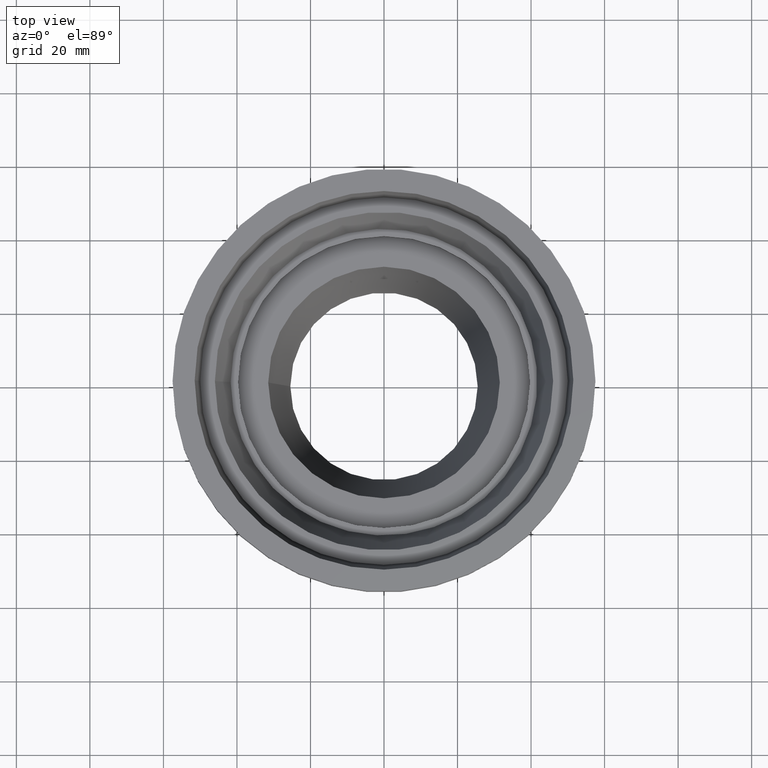
[diagram: clean part render]
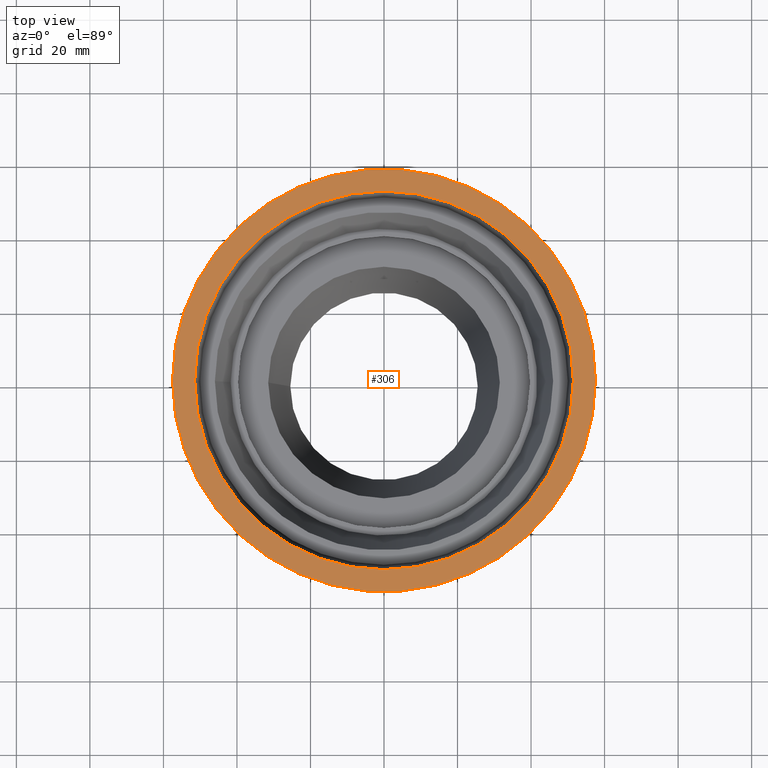
[diagram: same view with one face highlighted and labeled with its STEP entity id]
A machine part, top view. The second image highlights one B-rep face of the part: STEP entity #306.
In plain terms, the highlighted planar face has unit normal (0, 0, 1).
Its self-contained STEP definition (entity closure, byte-faithful):
#59=ORIENTED_EDGE('',*,*,#108,.T.);
#60=ORIENTED_EDGE('',*,*,#107,.F.);
#107=EDGE_CURVE('',#134,#134,#161,.T.);
#108=EDGE_CURVE('',#135,#135,#162,.T.);
#134=VERTEX_POINT('',#544);
#135=VERTEX_POINT('',#547);
#161=CIRCLE('',#366,57.5);
#162=CIRCLE('',#368,51.5);
#194=EDGE_LOOP('',(#59));
#195=EDGE_LOOP('',(#60));
#248=FACE_BOUND('',#194,.T.);
#249=FACE_BOUND('',#195,.T.);
#293=PLANE('',#367);
#306=ADVANCED_FACE('',(#248,#249),#293,.T.);
#366=AXIS2_PLACEMENT_3D('',#543,#437,#438);
#367=AXIS2_PLACEMENT_3D('',#545,#439,#440);
#368=AXIS2_PLACEMENT_3D('',#546,#441,#442);
#437=DIRECTION('',(0.,0.,-1.));
#438=DIRECTION('',(-1.,0.,0.));
#439=DIRECTION('',(0.,0.,1.));
#440=DIRECTION('',(1.,0.,0.));
#441=DIRECTION('',(0.,0.,-1.));
#442=DIRECTION('',(-1.,0.,0.));
#543=CARTESIAN_POINT('',(0.,0.,0.));
#544=CARTESIAN_POINT('',(-57.5,0.,0.));
#545=CARTESIAN_POINT('',(-57.5,0.,0.));
#546=CARTESIAN_POINT('',(0.,0.,0.));
#547=CARTESIAN_POINT('',(-51.5,0.,0.));